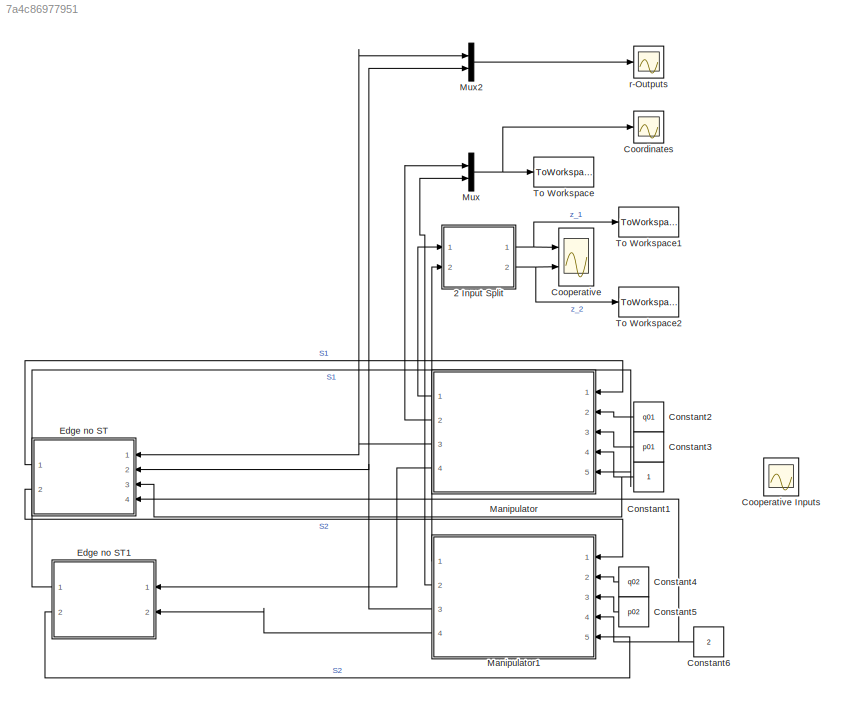
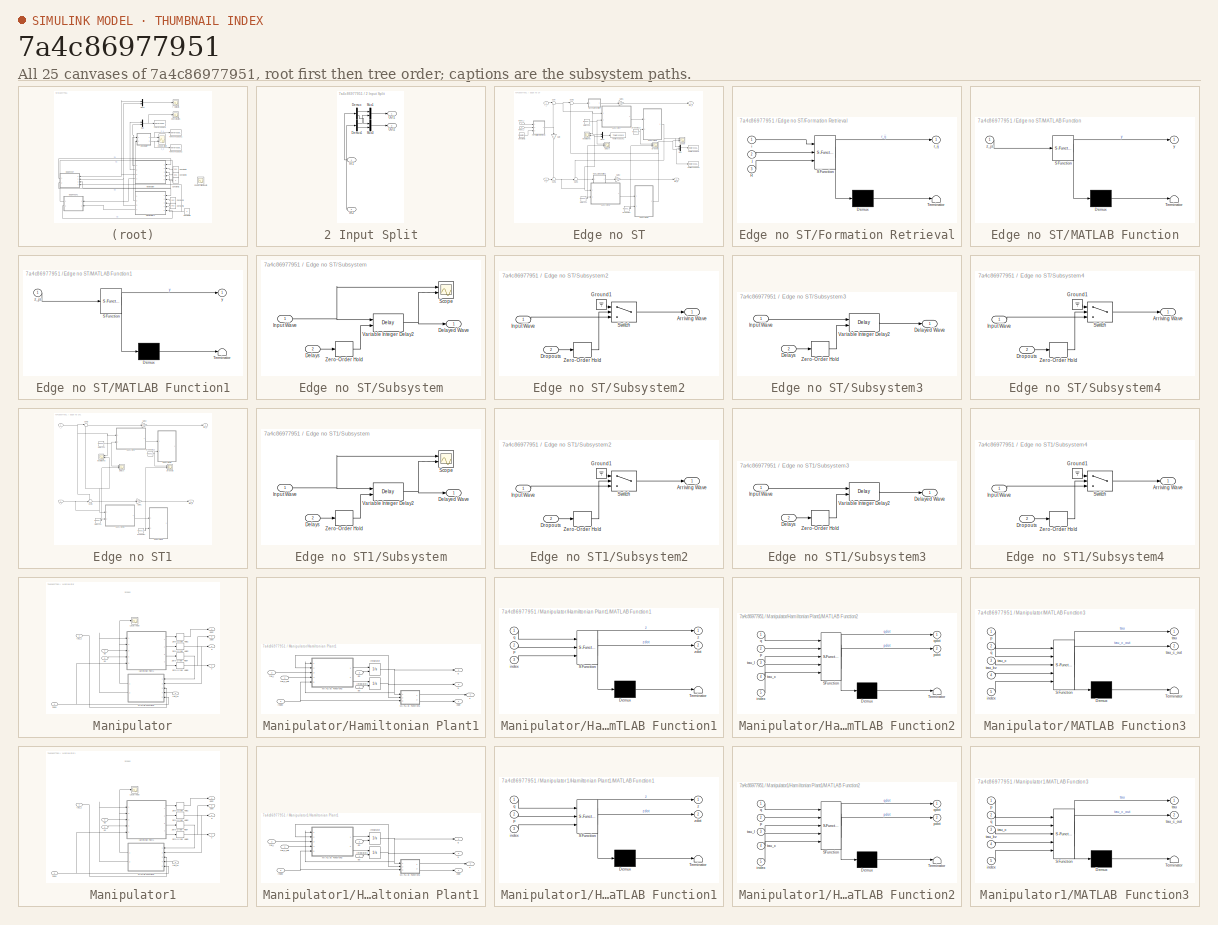
[diagram: thumbnail index - all 25 canvases of the model, root first then tree order]
MODEL slx_7a4c86977951
KIND model
CONFIG AbsTol = auto
CONFIG EnableMultiTasking = off
CONFIG FixedStep = auto
CONFIG MaxStep = auto
CONFIG MinStep = auto
CONFIG RelTol = 1e-5
CONFIG SampleTimeConstraint = Unconstrained
CONFIG Solver = ode23tb
CONFIG SolverName = ode23tb
CONFIG StartTime = 0.0
CONFIG StopTime = 20
BLOCK [SubSystem] 2 Input Split
  Ports = [2, 2]
  RequestExecContextInheritance = off
BLOCK [Demux] 2 Input Split/Demux
  DisplayOption = bar
  Outputs = 2
  Ports = [1, 2]
BLOCK [Demux] 2 Input Split/Demux1
  DisplayOption = bar
  Outputs = 2
  Ports = [1, 2]
BLOCK [Inport] 2 Input Split/In1
  IconDisplay = Port number
BLOCK [Inport] 2 Input Split/In2
  IconDisplay = Port number
  Port = 2
BLOCK [Mux] 2 Input Split/Mux1
  DisplayOption = bar
  Inputs = 2
  Ports = [2, 1]
BLOCK [Mux] 2 Input Split/Mux3
  DisplayOption = bar
  Inputs = 2
  Ports = [2, 1]
BLOCK [Outport] 2 Input Split/Out1
  IconDisplay = Port number
BLOCK [Outport] 2 Input Split/Out2
  IconDisplay = Port number
  Port = 2
BLOCK [Constant] Constant1
BLOCK [Constant] Constant2
  Value = q01
BLOCK [Constant] Constant3
  Value = p01
BLOCK [Constant] Constant4
  Value = q02
BLOCK [Constant] Constant5
  Value = p02
BLOCK [Constant] Constant6
  Value = 2
BLOCK [Scope] Cooperative
  Floating = off
  NumInputPorts = 2
  Ports = [2]
  ScopeSpecificationString = Simulink.scopes.TimeScopeBlockCfg('CurrentConfiguration', extmgr.ConfigurationSet(extmgr.Configuration('Core','General UI',true),extmgr.Configuration('Core','Source UI',true),extmgr.Configuration('Sources','WiredSimulink',true,'DataLoggingVariableName','ScopeData1'),extmgr.Configuration('Visuals','Time Domain',true,'SerializedDisplays',{struct('MinYLimReal','-2.47719','MaxYLimReal','2.49469','YLab...<+2118ch>
BLOCK [Scope] Cooperative Inputs
  Floating = off
  NumInputPorts = 2
  Ports = [2]
  ScopeSpecificationString = Simulink.scopes.TimeScopeBlockCfg('CurrentConfiguration', extmgr.ConfigurationSet(extmgr.Configuration('Core','General UI',true),extmgr.Configuration('Core','Source UI',true),extmgr.Configuration('Sources','WiredSimulink',true,'DataLoggingVariableName','ScopeData2'),extmgr.Configuration('Visuals','Time Domain',true,'SerializedDisplays',{struct('MinYLimReal','-3.51693','MaxYLimReal','1.87737','YLab...<+2090ch>
BLOCK [Scope] Coordinates
  Floating = off
  NumInputPorts = 1
  Ports = [1]
  ScopeSpecificationString = Simulink.scopes.TimeScopeBlockCfg('CurrentConfiguration', extmgr.ConfigurationSet(extmgr.Configuration('Core','General UI',true),extmgr.Configuration('Core','Source UI',true),extmgr.Configuration('Sources','WiredSimulink',true,'DataLoggingVariableName','ScopeData2'),extmgr.Configuration('Visuals','Time Domain',true,'SerializedDisplays',{struct('MinYLimReal','-2.51782','MaxYLimReal','3.95817','YLab...<+2040ch>
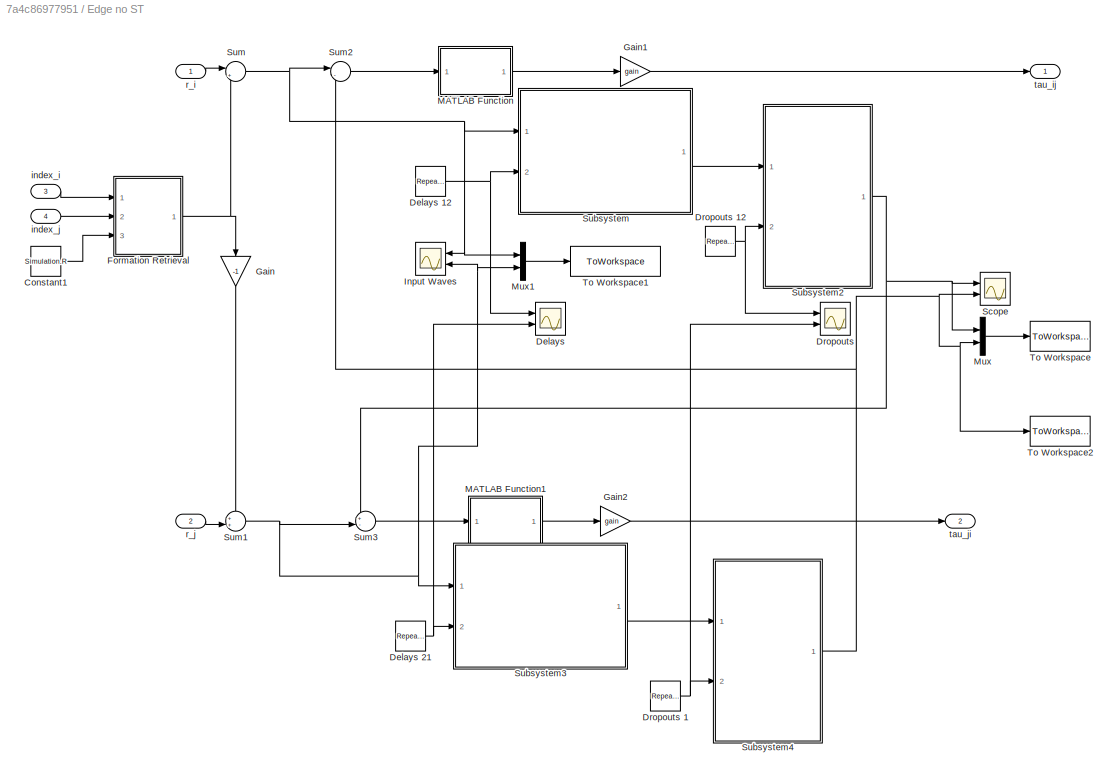
BLOCK [SubSystem] Edge no ST
  Ports = [4, 2]
  RequestExecContextInheritance = off
BLOCK [Constant] Edge no ST/Constant1
  Value = Simulation.R
BLOCK [Scope] Edge no ST/Delays
  Floating = off
  NumInputPorts = 2
  Ports = [2]
  ScopeSpecificationString = Simulink.scopes.TimeScopeBlockCfg('CurrentConfiguration', extmgr.ConfigurationSet(extmgr.Configuration('Core','General UI',true),extmgr.Configuration('Core','Source UI',true),extmgr.Configuration('Sources','WiredSimulink',true,'DataLoggingVariableName','ScopeData1'),extmgr.Configuration('Visuals','Time Domain',true,'SerializedDisplays',{struct('MinYLimReal','-1.00000','MaxYLimReal','1.00000','YLab...<+2087ch>
BLOCK [Reference] Edge no ST/Delays 12  REF=simulink/Sources/Repeating
Sequence
  Ports = [0, 1]
  SourceBlock = simulink/Sources/Repeating\nSequence
  SourceProductBaseCode = SL
  SourceProductName = Simulink
  SourceType = Repeating table
BLOCK [Reference] Edge no ST/Delays 21  REF=simulink/Sources/Repeating
Sequence
  Ports = [0, 1]
  SourceBlock = simulink/Sources/Repeating\nSequence
  SourceProductBaseCode = SL
  SourceProductName = Simulink
  SourceType = Repeating table
BLOCK [Scope] Edge no ST/Dropouts
  Floating = off
  NumInputPorts = 2
  Ports = [2]
  ScopeSpecificationString = Simulink.scopes.TimeScopeBlockCfg('CurrentConfiguration', extmgr.ConfigurationSet(extmgr.Configuration('Core','General UI',true),extmgr.Configuration('Core','Source UI',true),extmgr.Configuration('Sources','WiredSimulink',true,'DataLoggingVariableName','ScopeData3'),extmgr.Configuration('Visuals','Time Domain',true,'SerializedDisplays',{struct('MinYLimReal','-1.00000','MaxYLimReal','1.00000','YLab...<+2090ch>
BLOCK [Reference] Edge no ST/Dropouts 1  REF=simulink/Sources/Repeating
Sequence
  Ports = [0, 1]
  SourceBlock = simulink/Sources/Repeating\nSequence
  SourceProductBaseCode = SL
  SourceProductName = Simulink
  SourceType = Repeating table
BLOCK [Reference] Edge no ST/Dropouts 12  REF=simulink/Sources/Repeating
Sequence
  Ports = [0, 1]
  SourceBlock = simulink/Sources/Repeating\nSequence
  SourceProductBaseCode = SL
  SourceProductName = Simulink
  SourceType = Repeating table
BLOCK [SubSystem] Edge no ST/Formation Retrieval
  ErrorFcn = Stateflow.Translate.translate
  PermitHierarchicalResolution = ExplicitOnly
  Ports = [3, 1]
  RequestExecContextInheritance = off
  SFBlockType = MATLAB Function
  TreatAsAtomicUnit = on
BLOCK [Demux] Edge no ST/Formation Retrieval/ Demux 
  Outputs = 1
  Ports = [1, 1]
BLOCK [S-Function] Edge no ST/Formation Retrieval/ SFunction 
  EnableBusSupport = on
  FunctionName = sf_sfun
  PortCounts = [3 2]
  Ports = [3, 2]
  SFcnIsStateOwnerBlock = off
  SFunctionDeploymentMode = off
  Tag = Stateflow S-Function Model_2Systems_IDA 11
BLOCK [Terminator] Edge no ST/Formation Retrieval/ Terminator 
BLOCK [Inport] Edge no ST/Formation Retrieval/R
  IconDisplay = Port number
  Port = 3
BLOCK [Inport] Edge no ST/Formation Retrieval/i
  IconDisplay = Port number
BLOCK [Inport] Edge no ST/Formation Retrieval/j
  IconDisplay = Port number
  Port = 2
BLOCK [Outport] Edge no ST/Formation Retrieval/r_ij
  IconDisplay = Port number
BLOCK [Gain] Edge no ST/Gain
  Gain = -1
  OutDataTypeStr = Inherit: Inherit via internal rule
  ParamDataTypeStr = Inherit: Inherit via internal rule
  SaturateOnIntegerOverflow = off
BLOCK [Gain] Edge no ST/Gain1
  Gain = gain
  OutDataTypeStr = Inherit: Inherit via internal rule
  ParamDataTypeStr = Inherit: Inherit via internal rule
  SaturateOnIntegerOverflow = off
BLOCK [Gain] Edge no ST/Gain2
  Gain = gain
  OutDataTypeStr = Inherit: Inherit via internal rule
  ParamDataTypeStr = Inherit: Inherit via internal rule
  SaturateOnIntegerOverflow = off
BLOCK [Scope] Edge no ST/Input Waves
  Floating = off
  NumInputPorts = 2
  Ports = [2]
  ScopeSpecificationString = Simulink.scopes.TimeScopeBlockCfg('CurrentConfiguration', extmgr.ConfigurationSet(extmgr.Configuration('Core','General UI',true),extmgr.Configuration('Core','Source UI',true),extmgr.Configuration('Sources','WiredSimulink',true,'DataLoggingVariableName','ScopeData6'),extmgr.Configuration('Visuals','Time Domain',true,'SerializedDisplays',{struct('MinYLimReal','-1.04015','MaxYLimReal','2.33502','YLab...<+2047ch>
BLOCK [SubSystem] Edge no ST/MATLAB Function
  ErrorFcn = Stateflow.Translate.translate
  PermitHierarchicalResolution = ExplicitOnly
  Ports = [1, 1]
  RequestExecContextInheritance = off
  SFBlockType = MATLAB Function
  TreatAsAtomicUnit = on
BLOCK [Demux] Edge no ST/MATLAB Function/ Demux 
  Outputs = 1
  Ports = [1, 1]
BLOCK [S-Function] Edge no ST/MATLAB Function/ SFunction 
  EnableBusSupport = on
  FunctionName = sf_sfun
  PortCounts = [1 2]
  Ports = [1, 2]
  SFcnIsStateOwnerBlock = off
  SFunctionDeploymentMode = off
  Tag = Stateflow S-Function Model_2Systems_IDA 4
BLOCK [Terminator] Edge no ST/MATLAB Function/ Terminator 
BLOCK [Outport] Edge no ST/MATLAB Function/y
  IconDisplay = Port number
BLOCK [Inport] Edge no ST/MATLAB Function/z_js
  IconDisplay = Port number
BLOCK [SubSystem] Edge no ST/MATLAB Function1
  ErrorFcn = Stateflow.Translate.translate
  PermitHierarchicalResolution = ExplicitOnly
  Ports = [1, 1]
  RequestExecContextInheritance = off
  SFBlockType = MATLAB Function
  TreatAsAtomicUnit = on
BLOCK [Demux] Edge no ST/MATLAB Function1/ Demux 
  Outputs = 1
  Ports = [1, 1]
BLOCK [S-Function] Edge no ST/MATLAB Function1/ SFunction 
  EnableBusSupport = on
  FunctionName = sf_sfun
  PortCounts = [1 2]
  Ports = [1, 2]
  SFcnIsStateOwnerBlock = off
  SFunctionDeploymentMode = off
  Tag = Stateflow S-Function Model_2Systems_IDA 5
BLOCK [Terminator] Edge no ST/MATLAB Function1/ Terminator 
BLOCK [Outport] Edge no ST/MATLAB Function1/y
  IconDisplay = Port number
BLOCK [Inport] Edge no ST/MATLAB Function1/z_js
  IconDisplay = Port number
BLOCK [Mux] Edge no ST/Mux
  DisplayOption = bar
  Inputs = 2
  Ports = [2, 1]
BLOCK [Mux] Edge no ST/Mux1
  DisplayOption = bar
  Inputs = 2
  Ports = [2, 1]
BLOCK [Scope] Edge no ST/Scope
  Floating = off
  NumInputPorts = 2
  Ports = [2]
  ScopeSpecificationString = Simulink.scopes.TimeScopeBlockCfg('CurrentConfiguration', extmgr.ConfigurationSet(extmgr.Configuration('Core','General UI',true),extmgr.Configuration('Core','Source UI',true),extmgr.Configuration('Sources','WiredSimulink',true,'DataLoggingVariableName','ScopeData5'),extmgr.Configuration('Visuals','Time Domain',true,'SerializedDisplays',{struct('MinYLimReal','-1.01995','MaxYLimReal','2.33277','YLab...<+2083ch>
BLOCK [SubSystem] Edge no ST/Subsystem
  Ports = [2, 1]
  RequestExecContextInheritance = off
BLOCK [Outport] Edge no ST/Subsystem/Delayed Wave
  IconDisplay = Port number
BLOCK [Inport] Edge no ST/Subsystem/Delays
  IconDisplay = Port number
  Port = 2
BLOCK [Inport] Edge no ST/Subsystem/Input Wave
  IconDisplay = Port number
BLOCK [Scope] Edge no ST/Subsystem/Scope
  Floating = off
  NumInputPorts = 2
  Ports = [2]
  ScopeSpecificationString = Simulink.scopes.TimeScopeBlockCfg('CurrentConfiguration', extmgr.ConfigurationSet(extmgr.Configuration('Core','General UI',true),extmgr.Configuration('Core','Source UI',true),extmgr.Configuration('Sources','WiredSimulink',true,'DataLoggingVariableName','ScopeData1'),extmgr.Configuration('Visuals','Time Domain',true,'SerializedDisplays',{struct('MinYLimReal','1.346207','MaxYLimReal','1.346266','YLa...<+1496ch>
BLOCK [Delay] Edge no ST/Subsystem/Variable Integer Delay2
  DelayLengthSource = Input port
  InputPortMap = u0,p1
  Ports = [2, 1]
  SampleTime = Ts
BLOCK [ZeroOrderHold] Edge no ST/Subsystem/Zero-Order Hold
  SampleTime = Ts
BLOCK [SubSystem] Edge no ST/Subsystem2
  Ports = [2, 1]
  RequestExecContextInheritance = off
BLOCK [Outport] Edge no ST/Subsystem2/Arriving Wave
  IconDisplay = Port number
BLOCK [Inport] Edge no ST/Subsystem2/Dropouts
  IconDisplay = Port number
  Port = 2
BLOCK [Ground] Edge no ST/Subsystem2/Ground1
BLOCK [Inport] Edge no ST/Subsystem2/Input Wave
  IconDisplay = Port number
BLOCK [Switch] Edge no ST/Subsystem2/Switch
  Criteria = u2 > Threshold
  InputSameDT = off
  SaturateOnIntegerOverflow = off
BLOCK [ZeroOrderHold] Edge no ST/Subsystem2/Zero-Order Hold
  SampleTime = Ts
BLOCK [SubSystem] Edge no ST/Subsystem3
  Ports = [2, 1]
  RequestExecContextInheritance = off
BLOCK [Outport] Edge no ST/Subsystem3/Delayed Wave
  IconDisplay = Port number
BLOCK [Inport] Edge no ST/Subsystem3/Delays
  IconDisplay = Port number
  Port = 2
BLOCK [Inport] Edge no ST/Subsystem3/Input Wave
  IconDisplay = Port number
BLOCK [Delay] Edge no ST/Subsystem3/Variable Integer Delay2
  DelayLengthSource = Input port
  InputPortMap = u0,p1
  Ports = [2, 1]
  SampleTime = Ts
BLOCK [ZeroOrderHold] Edge no ST/Subsystem3/Zero-Order Hold
  SampleTime = Ts
BLOCK [SubSystem] Edge no ST/Subsystem4
  Ports = [2, 1]
  RequestExecContextInheritance = off
BLOCK [Outport] Edge no ST/Subsystem4/Arriving Wave
  IconDisplay = Port number
BLOCK [Inport] Edge no ST/Subsystem4/Dropouts
  IconDisplay = Port number
  Port = 2
BLOCK [Ground] Edge no ST/Subsystem4/Ground1
BLOCK [Inport] Edge no ST/Subsystem4/Input Wave
  IconDisplay = Port number
BLOCK [Switch] Edge no ST/Subsystem4/Switch
  Criteria = u2 > Threshold
  InputSameDT = off
  SaturateOnIntegerOverflow = off
BLOCK [ZeroOrderHold] Edge no ST/Subsystem4/Zero-Order Hold
  SampleTime = Ts
BLOCK [Sum] Edge no ST/Sum
  IconShape = round
  InputSameDT = off
  Inputs = |++
  OutDataTypeStr = Inherit: Inherit via internal rule
  Ports = [2, 1]
  SaturateOnIntegerOverflow = off
BLOCK [Sum] Edge no ST/Sum1
  IconShape = round
  InputSameDT = off
  Inputs = ++|
  OutDataTypeStr = Inherit: Inherit via internal rule
  Ports = [2, 1]
  SaturateOnIntegerOverflow = off
BLOCK [Sum] Edge no ST/Sum2
  IconShape = round
  InputSameDT = off
  Inputs = |-+
  OutDataTypeStr = Inherit: Inherit via internal rule
  Ports = [2, 1]
  SaturateOnIntegerOverflow = off
BLOCK [Sum] Edge no ST/Sum3
  IconShape = round
  InputSameDT = off
  Inputs = +-|
  OutDataTypeStr = Inherit: Inherit via internal rule
  Ports = [2, 1]
  SaturateOnIntegerOverflow = off
BLOCK [ToWorkspace] Edge no ST/To Workspace
  FixptAsFi = on
  MaxDataPoints = inf
  Ports = [1]
  SampleTime = Ts
  Save2DSignal = 3-D array (concatenate along third dimension)
  SaveFormat = Timeseries
  VariableName = Output_Waves
BLOCK [ToWorkspace] Edge no ST/To Workspace1
  FixptAsFi = on
  MaxDataPoints = inf
  Ports = [1]
  SampleTime = Ts
  Save2DSignal = 3-D array (concatenate along third dimension)
  SaveFormat = Timeseries
  VariableName = Input_Waves
BLOCK [ToWorkspace] Edge no ST/To Workspace2
  FixptAsFi = on
  MaxDataPoints = inf
  Ports = [1]
  SampleTime = Ts
  Save2DSignal = 3-D array (concatenate along third dimension)
  SaveFormat = Timeseries
  VariableName = S
BLOCK [Inport] Edge no ST/index_i
  IconDisplay = Port number
  Port = 3
BLOCK [Inport] Edge no ST/index_j
  IconDisplay = Port number
  Port = 4
BLOCK [Inport] Edge no ST/r_i
  IconDisplay = Port number
BLOCK [Inport] Edge no ST/r_j
  IconDisplay = Port number
  Port = 2
BLOCK [Outport] Edge no ST/tau_ij
  IconDisplay = Port number
BLOCK [Outport] Edge no ST/tau_ji
  IconDisplay = Port number
  Port = 2
BLOCK [SubSystem] Edge no ST1
  Ports = [2, 2]
  RequestExecContextInheritance = off
BLOCK [Scope] Edge no ST1/Delays
  Floating = off
  NumInputPorts = 2
  Ports = [2]
  ScopeSpecificationString = Simulink.scopes.TimeScopeBlockCfg('CurrentConfiguration', extmgr.ConfigurationSet(extmgr.Configuration('Core','General UI',true),extmgr.Configuration('Core','Source UI',true),extmgr.Configuration('Sources','WiredSimulink',true,'DataLoggingVariableName','ScopeData1'),extmgr.Configuration('Visuals','Time Domain',true,'SerializedDisplays',{struct('MinYLimReal','-1.00000','MaxYLimReal','1.00000','YLab...<+2087ch>
BLOCK [Reference] Edge no ST1/Delays 12  REF=simulink/Sources/Repeating
Sequence
  Ports = [0, 1]
  SourceBlock = simulink/Sources/Repeating\nSequence
  SourceProductBaseCode = SL
  SourceProductName = Simulink
  SourceType = Repeating table
BLOCK [Reference] Edge no ST1/Delays 21  REF=simulink/Sources/Repeating
Sequence
  Ports = [0, 1]
  SourceBlock = simulink/Sources/Repeating\nSequence
  SourceProductBaseCode = SL
  SourceProductName = Simulink
  SourceType = Repeating table
BLOCK [Scope] Edge no ST1/Dropouts
  Floating = off
  NumInputPorts = 2
  Ports = [2]
  ScopeSpecificationString = Simulink.scopes.TimeScopeBlockCfg('CurrentConfiguration', extmgr.ConfigurationSet(extmgr.Configuration('Core','General UI',true),extmgr.Configuration('Core','Source UI',true),extmgr.Configuration('Sources','WiredSimulink',true,'DataLoggingVariableName','ScopeData3'),extmgr.Configuration('Visuals','Time Domain',true,'SerializedDisplays',{struct('MinYLimReal','-1.00000','MaxYLimReal','1.00000','YLab...<+2090ch>
BLOCK [Reference] Edge no ST1/Dropouts 1  REF=simulink/Sources/Repeating
Sequence
  Ports = [0, 1]
  SourceBlock = simulink/Sources/Repeating\nSequence
  SourceProductBaseCode = SL
  SourceProductName = Simulink
  SourceType = Repeating table
BLOCK [Reference] Edge no ST1/Dropouts 12  REF=simulink/Sources/Repeating
Sequence
  Ports = [0, 1]
  SourceBlock = simulink/Sources/Repeating\nSequence
  SourceProductBaseCode = SL
  SourceProductName = Simulink
  SourceType = Repeating table
BLOCK [Gain] Edge no ST1/Gain1
  Gain = gain
  OutDataTypeStr = Inherit: Inherit via internal rule
  ParamDataTypeStr = Inherit: Inherit via internal rule
  SaturateOnIntegerOverflow = off
BLOCK [Gain] Edge no ST1/Gain2
  Gain = gain
  OutDataTypeStr = Inherit: Inherit via internal rule
  ParamDataTypeStr = Inherit: Inherit via internal rule
  SaturateOnIntegerOverflow = off
BLOCK [Scope] Edge no ST1/Input Waves
  Floating = off
  NumInputPorts = 2
  Ports = [2]
  ScopeSpecificationString = Simulink.scopes.TimeScopeBlockCfg('CurrentConfiguration', extmgr.ConfigurationSet(extmgr.Configuration('Core','General UI',true),extmgr.Configuration('Core','Source UI',true),extmgr.Configuration('Sources','WiredSimulink',true,'DataLoggingVariableName','ScopeData6'),extmgr.Configuration('Visuals','Time Domain',true,'SerializedDisplays',{struct('MinYLimReal','-1.04015','MaxYLimReal','2.33502','YLab...<+2047ch>
BLOCK [SubSystem] Edge no ST1/Subsystem
  Ports = [2, 1]
  RequestExecContextInheritance = off
BLOCK [Outport] Edge no ST1/Subsystem/Delayed Wave
  IconDisplay = Port number
BLOCK [Inport] Edge no ST1/Subsystem/Delays
  IconDisplay = Port number
  Port = 2
BLOCK [Inport] Edge no ST1/Subsystem/Input Wave
  IconDisplay = Port number
BLOCK [Scope] Edge no ST1/Subsystem/Scope
  Floating = off
  NumInputPorts = 2
  Ports = [2]
  ScopeSpecificationString = Simulink.scopes.TimeScopeBlockCfg('CurrentConfiguration', extmgr.ConfigurationSet(extmgr.Configuration('Core','General UI',true),extmgr.Configuration('Core','Source UI',true),extmgr.Configuration('Sources','WiredSimulink',true,'DataLoggingVariableName','ScopeData1'),extmgr.Configuration('Visuals','Time Domain',true,'SerializedDisplays',{struct('MinYLimReal','1.346207','MaxYLimReal','1.346266','YLa...<+1496ch>
BLOCK [Delay] Edge no ST1/Subsystem/Variable Integer Delay2
  DelayLengthSource = Input port
  InputPortMap = u0,p1
  Ports = [2, 1]
  SampleTime = Ts
BLOCK [ZeroOrderHold] Edge no ST1/Subsystem/Zero-Order Hold
  SampleTime = Ts
BLOCK [SubSystem] Edge no ST1/Subsystem2
  Ports = [2, 1]
  RequestExecContextInheritance = off
BLOCK [Outport] Edge no ST1/Subsystem2/Arriving Wave
  IconDisplay = Port number
BLOCK [Inport] Edge no ST1/Subsystem2/Dropouts
  IconDisplay = Port number
  Port = 2
BLOCK [Ground] Edge no ST1/Subsystem2/Ground1
BLOCK [Inport] Edge no ST1/Subsystem2/Input Wave
  IconDisplay = Port number
BLOCK [Switch] Edge no ST1/Subsystem2/Switch
  Criteria = u2 > Threshold
  InputSameDT = off
  SaturateOnIntegerOverflow = off
BLOCK [ZeroOrderHold] Edge no ST1/Subsystem2/Zero-Order Hold
  SampleTime = Ts
BLOCK [SubSystem] Edge no ST1/Subsystem3
  Ports = [2, 1]
  RequestExecContextInheritance = off
BLOCK [Outport] Edge no ST1/Subsystem3/Delayed Wave
  IconDisplay = Port number
BLOCK [Inport] Edge no ST1/Subsystem3/Delays
  IconDisplay = Port number
  Port = 2
BLOCK [Inport] Edge no ST1/Subsystem3/Input Wave
  IconDisplay = Port number
BLOCK [Delay] Edge no ST1/Subsystem3/Variable Integer Delay2
  DelayLengthSource = Input port
  InputPortMap = u0,p1
  Ports = [2, 1]
  SampleTime = Ts
BLOCK [ZeroOrderHold] Edge no ST1/Subsystem3/Zero-Order Hold
  SampleTime = Ts
BLOCK [SubSystem] Edge no ST1/Subsystem4
  Ports = [2, 1]
  RequestExecContextInheritance = off
BLOCK [Outport] Edge no ST1/Subsystem4/Arriving Wave
  IconDisplay = Port number
BLOCK [Inport] Edge no ST1/Subsystem4/Dropouts
  IconDisplay = Port number
  Port = 2
BLOCK [Ground] Edge no ST1/Subsystem4/Ground1
BLOCK [Inport] Edge no ST1/Subsystem4/Input Wave
  IconDisplay = Port number
BLOCK [Switch] Edge no ST1/Subsystem4/Switch
  Criteria = u2 > Threshold
  InputSameDT = off
  SaturateOnIntegerOverflow = off
BLOCK [ZeroOrderHold] Edge no ST1/Subsystem4/Zero-Order Hold
  SampleTime = Ts
BLOCK [Sum] Edge no ST1/Sum2
  IconShape = round
  InputSameDT = off
  Inputs = |-+
  OutDataTypeStr = Inherit: Inherit via internal rule
  Ports = [2, 1]
  SaturateOnIntegerOverflow = off
BLOCK [Sum] Edge no ST1/Sum3
  IconShape = round
  InputSameDT = off
  Inputs = +-|
  OutDataTypeStr = Inherit: Inherit via internal rule
  Ports = [2, 1]
  SaturateOnIntegerOverflow = off
BLOCK [Inport] Edge no ST1/r_i
  IconDisplay = Port number
BLOCK [Inport] Edge no ST1/r_j
  IconDisplay = Port number
  Port = 2
BLOCK [Outport] Edge no ST1/tau_ij
  IconDisplay = Port number
BLOCK [Outport] Edge no ST1/tau_ji
  IconDisplay = Port number
  Port = 2
BLOCK [SubSystem] Manipulator
  Ports = [5, 4]
  RequestExecContextInheritance = off
BLOCK [SubSystem] Manipulator/Hamiltonian Plant1
  Ports = [5, 4]
  RequestExecContextInheritance = off
BLOCK [Integrator] Manipulator/Hamiltonian Plant1/Integrator
  InitialCondition = q01
  InitialConditionSource = external
  Ports = [2, 1]
BLOCK [Integrator] Manipulator/Hamiltonian Plant1/Integrator1
  InitialCondition = p02
  InitialConditionSource = external
  Ports = [2, 1]
BLOCK [SubSystem] Manipulator/Hamiltonian Plant1/MATLAB Function1
  ErrorFcn = Stateflow.Translate.translate
  PermitHierarchicalResolution = ExplicitOnly
  Ports = [3, 2]
  RequestExecContextInheritance = off
  SFBlockType = MATLAB Function
  TreatAsAtomicUnit = on
BLOCK [Demux] Manipulator/Hamiltonian Plant1/MATLAB Function1/ Demux 
  Outputs = 1
  Ports = [1, 1]
BLOCK [S-Function] Manipulator/Hamiltonian Plant1/MATLAB Function1/ SFunction 
  EnableBusSupport = on
  FunctionName = sf_sfun
  PortCounts = [3 3]
  Ports = [3, 3]
  SFcnIsStateOwnerBlock = off
  SFunctionDeploymentMode = off
  Tag = Stateflow S-Function Model_2Systems_IDA 22
BLOCK [Terminator] Manipulator/Hamiltonian Plant1/MATLAB Function1/ Terminator 
BLOCK [Inport] Manipulator/Hamiltonian Plant1/MATLAB Function1/index
  IconDisplay = Port number
  Port = 3
BLOCK [Inport] Manipulator/Hamiltonian Plant1/MATLAB Function1/p
  IconDisplay = Port number
  Port = 2
BLOCK [Inport] Manipulator/Hamiltonian Plant1/MATLAB Function1/q
  IconDisplay = Port number
BLOCK [Outport] Manipulator/Hamiltonian Plant1/MATLAB Function1/z
  IconDisplay = Port number
BLOCK [Outport] Manipulator/Hamiltonian Plant1/MATLAB Function1/zdot
  IconDisplay = Port number
  Port = 2
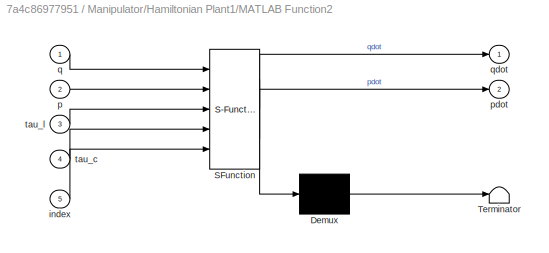
BLOCK [SubSystem] Manipulator/Hamiltonian Plant1/MATLAB Function2
  ErrorFcn = Stateflow.Translate.translate
  PermitHierarchicalResolution = ExplicitOnly
  Ports = [5, 2]
  RequestExecContextInheritance = off
  SFBlockType = MATLAB Function
  TreatAsAtomicUnit = on
BLOCK [Demux] Manipulator/Hamiltonian Plant1/MATLAB Function2/ Demux 
  Outputs = 1
  Ports = [1, 1]
BLOCK [S-Function] Manipulator/Hamiltonian Plant1/MATLAB Function2/ SFunction 
  EnableBusSupport = on
  FunctionName = sf_sfun
  PortCounts = [5 3]
  Ports = [5, 3]
  SFcnIsStateOwnerBlock = off
  SFunctionDeploymentMode = off
  Tag = Stateflow S-Function Model_2Systems_IDA 23
BLOCK [Terminator] Manipulator/Hamiltonian Plant1/MATLAB Function2/ Terminator 
BLOCK [Inport] Manipulator/Hamiltonian Plant1/MATLAB Function2/index
  IconDisplay = Port number
  Port = 5
BLOCK [Inport] Manipulator/Hamiltonian Plant1/MATLAB Function2/p
  IconDisplay = Port number
  Port = 2
BLOCK [Outport] Manipulator/Hamiltonian Plant1/MATLAB Function2/pdot
  IconDisplay = Port number
  Port = 2
BLOCK [Inport] Manipulator/Hamiltonian Plant1/MATLAB Function2/q
  IconDisplay = Port number
BLOCK [Outport] Manipulator/Hamiltonian Plant1/MATLAB Function2/qdot
  IconDisplay = Port number
BLOCK [Inport] Manipulator/Hamiltonian Plant1/MATLAB Function2/tau_c
  IconDisplay = Port number
  Port = 4
BLOCK [Inport] Manipulator/Hamiltonian Plant1/MATLAB Function2/tau_l
  IconDisplay = Port number
  Port = 3
BLOCK [Inport] Manipulator/Hamiltonian Plant1/index
  IconDisplay = Port number
  Port = 5
BLOCK [Outport] Manipulator/Hamiltonian Plant1/p
  IconDisplay = Port number
  Port = 3
BLOCK [Inport] Manipulator/Hamiltonian Plant1/p0
  IconDisplay = Port number
  Port = 4
BLOCK [Outport] Manipulator/Hamiltonian Plant1/q
  IconDisplay = Port number
  Port = 2
BLOCK [Inport] Manipulator/Hamiltonian Plant1/q0
  IconDisplay = Port number
  Port = 3
BLOCK [Inport] Manipulator/Hamiltonian Plant1/tau_c_hat
  IconDisplay = Port number
BLOCK [Inport] Manipulator/Hamiltonian Plant1/tau_l
  IconDisplay = Port number
  Port = 2
BLOCK [Outport] Manipulator/Hamiltonian Plant1/z
  IconDisplay = Port number
  Port = 4
BLOCK [Outport] Manipulator/Hamiltonian Plant1/zdot
  IconDisplay = Port number
BLOCK [Scope] Manipulator/Local Input
  Floating = off
  NumInputPorts = 1
  Ports = [1]
  ScopeSpecificationString = Simulink.scopes.TimeScopeBlockCfg('CurrentConfiguration', extmgr.ConfigurationSet(extmgr.Configuration('Core','General UI',true),extmgr.Configuration('Core','Source UI',true),extmgr.Configuration('Sources','WiredSimulink',true,'DataLoggingVariableName','ScopeData2'),extmgr.Configuration('Visuals','Time Domain',true,'SerializedDisplays',{struct('MinYLimReal','-15.04673','MaxYLimReal','0.06127','YLa...<+1489ch>
BLOCK [SubSystem] Manipulator/MATLAB Function3
  ErrorFcn = Stateflow.Translate.translate
  PermitHierarchicalResolution = ExplicitOnly
  Ports = [5, 2]
  RequestExecContextInheritance = off
  SFBlockType = MATLAB Function
  TreatAsAtomicUnit = on
BLOCK [Demux] Manipulator/MATLAB Function3/ Demux 
  Outputs = 1
  Ports = [1, 1]
BLOCK [S-Function] Manipulator/MATLAB Function3/ SFunction 
  EnableBusSupport = on
  FunctionName = sf_sfun
  Parameters = start_delays
  PortCounts = [5 3]
  Ports = [5, 3]
  SFcnIsStateOwnerBlock = off
  SFunctionDeploymentMode = off
  Tag = Stateflow S-Function Model_2Systems_IDA 26
BLOCK [Terminator] Manipulator/MATLAB Function3/ Terminator 
BLOCK [Inport] Manipulator/MATLAB Function3/index
  IconDisplay = Port number
  Port = 5
BLOCK [Inport] Manipulator/MATLAB Function3/p
  IconDisplay = Port number
BLOCK [Inport] Manipulator/MATLAB Function3/q
  IconDisplay = Port number
  Port = 2
BLOCK [Outport] Manipulator/MATLAB Function3/tau
  IconDisplay = Port number
BLOCK [Inport] Manipulator/MATLAB Function3/tau_c
  IconDisplay = Port number
  Port = 3
BLOCK [Outport] Manipulator/MATLAB Function3/tau_c_out
  IconDisplay = Port number
  Port = 2
BLOCK [Inport] Manipulator/MATLAB Function3/tau_kv
  IconDisplay = Port number
  Port = 4
BLOCK [ZeroOrderHold] Manipulator/Zero-Order Hold1
  SampleTime = Ts
BLOCK [ZeroOrderHold] Manipulator/Zero-Order Hold2
  SampleTime = Ts
BLOCK [ZeroOrderHold] Manipulator/Zero-Order Hold4
  SampleTime = Ts
BLOCK [ZeroOrderHold] Manipulator/Zero-Order Hold5
  SampleTime = Ts
BLOCK [Inport] Manipulator/index
  IconDisplay = Port number
  Port = 4
BLOCK [Inport] Manipulator/p0
  IconDisplay = Port number
  Port = 3
BLOCK [Outport] Manipulator/q
  IconDisplay = Port number
  Port = 2
BLOCK [Inport] Manipulator/q0
  IconDisplay = Port number
  Port = 2
BLOCK [Outport] Manipulator/qdot
  IconDisplay = Port number
  Port = 4
BLOCK [Inport] Manipulator/tau_c
  IconDisplay = Port number
BLOCK [Inport] Manipulator/tau_kv
  IconDisplay = Port number
  Port = 5
BLOCK [Outport] Manipulator/z
  IconDisplay = Port number
BLOCK [Outport] Manipulator/zdot
  IconDisplay = Port number
  Port = 3
BLOCK [SubSystem] Manipulator1
  Ports = [5, 4]
  RequestExecContextInheritance = off
BLOCK [SubSystem] Manipulator1/Hamiltonian Plant1
  Ports = [5, 4]
  RequestExecContextInheritance = off
BLOCK [Integrator] Manipulator1/Hamiltonian Plant1/Integrator
  InitialCondition = q01
  InitialConditionSource = external
  Ports = [2, 1]
BLOCK [Integrator] Manipulator1/Hamiltonian Plant1/Integrator1
  InitialCondition = p02
  InitialConditionSource = external
  Ports = [2, 1]
BLOCK [SubSystem] Manipulator1/Hamiltonian Plant1/MATLAB Function1
  ErrorFcn = Stateflow.Translate.translate
  PermitHierarchicalResolution = ExplicitOnly
  Ports = [3, 2]
  RequestExecContextInheritance = off
  SFBlockType = MATLAB Function
  TreatAsAtomicUnit = on
BLOCK [Demux] Manipulator1/Hamiltonian Plant1/MATLAB Function1/ Demux 
  Outputs = 1
  Ports = [1, 1]
BLOCK [S-Function] Manipulator1/Hamiltonian Plant1/MATLAB Function1/ SFunction 
  EnableBusSupport = on
  FunctionName = sf_sfun
  PortCounts = [3 3]
  Ports = [3, 3]
  SFcnIsStateOwnerBlock = off
  SFunctionDeploymentMode = off
  Tag = Stateflow S-Function Model_2Systems_IDA 1
BLOCK [Terminator] Manipulator1/Hamiltonian Plant1/MATLAB Function1/ Terminator 
BLOCK [Inport] Manipulator1/Hamiltonian Plant1/MATLAB Function1/index
  IconDisplay = Port number
  Port = 3
BLOCK [Inport] Manipulator1/Hamiltonian Plant1/MATLAB Function1/p
  IconDisplay = Port number
  Port = 2
BLOCK [Inport] Manipulator1/Hamiltonian Plant1/MATLAB Function1/q
  IconDisplay = Port number
BLOCK [Outport] Manipulator1/Hamiltonian Plant1/MATLAB Function1/z
  IconDisplay = Port number
BLOCK [Outport] Manipulator1/Hamiltonian Plant1/MATLAB Function1/zdot
  IconDisplay = Port number
  Port = 2
BLOCK [SubSystem] Manipulator1/Hamiltonian Plant1/MATLAB Function2
  ErrorFcn = Stateflow.Translate.translate
  PermitHierarchicalResolution = ExplicitOnly
  Ports = [5, 2]
  RequestExecContextInheritance = off
  SFBlockType = MATLAB Function
  TreatAsAtomicUnit = on
BLOCK [Demux] Manipulator1/Hamiltonian Plant1/MATLAB Function2/ Demux 
  Outputs = 1
  Ports = [1, 1]
BLOCK [S-Function] Manipulator1/Hamiltonian Plant1/MATLAB Function2/ SFunction 
  EnableBusSupport = on
  FunctionName = sf_sfun
  PortCounts = [5 3]
  Ports = [5, 3]
  SFcnIsStateOwnerBlock = off
  SFunctionDeploymentMode = off
  Tag = Stateflow S-Function Model_2Systems_IDA 2
BLOCK [Terminator] Manipulator1/Hamiltonian Plant1/MATLAB Function2/ Terminator 
BLOCK [Inport] Manipulator1/Hamiltonian Plant1/MATLAB Function2/index
  IconDisplay = Port number
  Port = 5
BLOCK [Inport] Manipulator1/Hamiltonian Plant1/MATLAB Function2/p
  IconDisplay = Port number
  Port = 2
BLOCK [Outport] Manipulator1/Hamiltonian Plant1/MATLAB Function2/pdot
  IconDisplay = Port number
  Port = 2
BLOCK [Inport] Manipulator1/Hamiltonian Plant1/MATLAB Function2/q
  IconDisplay = Port number
BLOCK [Outport] Manipulator1/Hamiltonian Plant1/MATLAB Function2/qdot
  IconDisplay = Port number
BLOCK [Inport] Manipulator1/Hamiltonian Plant1/MATLAB Function2/tau_c
  IconDisplay = Port number
  Port = 4
BLOCK [Inport] Manipulator1/Hamiltonian Plant1/MATLAB Function2/tau_l
  IconDisplay = Port number
  Port = 3
BLOCK [Inport] Manipulator1/Hamiltonian Plant1/index
  IconDisplay = Port number
  Port = 5
BLOCK [Outport] Manipulator1/Hamiltonian Plant1/p
  IconDisplay = Port number
  Port = 3
BLOCK [Inport] Manipulator1/Hamiltonian Plant1/p0
  IconDisplay = Port number
  Port = 4
BLOCK [Outport] Manipulator1/Hamiltonian Plant1/q
  IconDisplay = Port number
  Port = 2
BLOCK [Inport] Manipulator1/Hamiltonian Plant1/q0
  IconDisplay = Port number
  Port = 3
BLOCK [Inport] Manipulator1/Hamiltonian Plant1/tau_c_hat
  IconDisplay = Port number
BLOCK [Inport] Manipulator1/Hamiltonian Plant1/tau_l
  IconDisplay = Port number
  Port = 2
BLOCK [Outport] Manipulator1/Hamiltonian Plant1/z
  IconDisplay = Port number
  Port = 4
BLOCK [Outport] Manipulator1/Hamiltonian Plant1/zdot
  IconDisplay = Port number
BLOCK [Scope] Manipulator1/Local Input
  Floating = off
  NumInputPorts = 1
  Ports = [1]
  ScopeSpecificationString = Simulink.scopes.TimeScopeBlockCfg('CurrentConfiguration', extmgr.ConfigurationSet(extmgr.Configuration('Core','General UI',true),extmgr.Configuration('Core','Source UI',true),extmgr.Configuration('Sources','WiredSimulink',true,'DataLoggingVariableName','ScopeData2'),extmgr.Configuration('Visuals','Time Domain',true,'SerializedDisplays',{struct('MinYLimReal','-15.04673','MaxYLimReal','0.06127','YLa...<+1489ch>
BLOCK [SubSystem] Manipulator1/MATLAB Function3
  ErrorFcn = Stateflow.Translate.translate
  PermitHierarchicalResolution = ExplicitOnly
  Ports = [5, 2]
  RequestExecContextInheritance = off
  SFBlockType = MATLAB Function
  TreatAsAtomicUnit = on
BLOCK [Demux] Manipulator1/MATLAB Function3/ Demux 
  Outputs = 1
  Ports = [1, 1]
BLOCK [S-Function] Manipulator1/MATLAB Function3/ SFunction 
  EnableBusSupport = on
  FunctionName = sf_sfun
  Parameters = start_delays
  PortCounts = [5 3]
  Ports = [5, 3]
  SFcnIsStateOwnerBlock = off
  SFunctionDeploymentMode = off
  Tag = Stateflow S-Function Model_2Systems_IDA 3
BLOCK [Terminator] Manipulator1/MATLAB Function3/ Terminator 
BLOCK [Inport] Manipulator1/MATLAB Function3/index
  IconDisplay = Port number
  Port = 5
BLOCK [Inport] Manipulator1/MATLAB Function3/p
  IconDisplay = Port number
BLOCK [Inport] Manipulator1/MATLAB Function3/q
  IconDisplay = Port number
  Port = 2
BLOCK [Outport] Manipulator1/MATLAB Function3/tau
  IconDisplay = Port number
BLOCK [Inport] Manipulator1/MATLAB Function3/tau_c
  IconDisplay = Port number
  Port = 3
BLOCK [Outport] Manipulator1/MATLAB Function3/tau_c_out
  IconDisplay = Port number
  Port = 2
BLOCK [Inport] Manipulator1/MATLAB Function3/tau_kv
  IconDisplay = Port number
  Port = 4
BLOCK [ZeroOrderHold] Manipulator1/Zero-Order Hold1
  SampleTime = Ts
BLOCK [ZeroOrderHold] Manipulator1/Zero-Order Hold2
  SampleTime = Ts
BLOCK [ZeroOrderHold] Manipulator1/Zero-Order Hold4
  SampleTime = Ts
BLOCK [ZeroOrderHold] Manipulator1/Zero-Order Hold5
  SampleTime = Ts
BLOCK [Inport] Manipulator1/index
  IconDisplay = Port number
  Port = 4
BLOCK [Inport] Manipulator1/p0
  IconDisplay = Port number
  Port = 3
BLOCK [Outport] Manipulator1/q
  IconDisplay = Port number
  Port = 2
BLOCK [Inport] Manipulator1/q0
  IconDisplay = Port number
  Port = 2
BLOCK [Outport] Manipulator1/qdot
  IconDisplay = Port number
  Port = 4
BLOCK [Inport] Manipulator1/tau_c
  IconDisplay = Port number
BLOCK [Inport] Manipulator1/tau_kv
  IconDisplay = Port number
  Port = 5
BLOCK [Outport] Manipulator1/z
  IconDisplay = Port number
BLOCK [Outport] Manipulator1/zdot
  IconDisplay = Port number
  Port = 3
BLOCK [Mux] Mux
  DisplayOption = bar
  Inputs = 2
  Ports = [2, 1]
BLOCK [Mux] Mux2
  DisplayOption = bar
  Inputs = 2
  Ports = [2, 1]
BLOCK [ToWorkspace] To Workspace
  FixptAsFi = on
  MaxDataPoints = inf
  Ports = [1]
  SampleTime = -1
  Save2DSignal = 3-D array (concatenate along third dimension)
  SaveFormat = Timeseries
  VariableName = q
BLOCK [ToWorkspace] To Workspace1
  FixptAsFi = on
  MaxDataPoints = inf
  Ports = [1]
  SampleTime = -1
  Save2DSignal = 3-D array (concatenate along third dimension)
  SaveFormat = Timeseries
  VariableName = z1
BLOCK [ToWorkspace] To Workspace2
  FixptAsFi = on
  MaxDataPoints = inf
  Ports = [1]
  SampleTime = -1
  Save2DSignal = 3-D array (concatenate along third dimension)
  SaveFormat = Timeseries
  VariableName = z2
BLOCK [Scope] r-Outputs
  Floating = off
  NumInputPorts = 1
  Ports = [1]
  ScopeSpecificationString = Simulink.scopes.TimeScopeBlockCfg('CurrentConfiguration', extmgr.ConfigurationSet(extmgr.Configuration('Core','General UI',true),extmgr.Configuration('Core','Source UI',true),extmgr.Configuration('Sources','WiredSimulink',true,'DataLoggingVariableName','ScopeData1'),extmgr.Configuration('Visuals','Time Domain',true,'SerializedDisplays',{struct('MinYLimReal','-2.51577','MaxYLimReal','2.49898','YLab...<+1482ch>
ANNOTATION Manipulator: Scopes
ANNOTATION Manipulator1: Scopes
LINE 2 Input Split/Demux1:1 -> 2 Input Split/Mux1:2
LINE 2 Input Split/Demux1:2 -> 2 Input Split/Mux3:2
LINE 2 Input Split/Demux:1 -> 2 Input Split/Mux1:1
LINE 2 Input Split/Demux:2 -> 2 Input Split/Mux3:1
LINE 2 Input Split/In1:1 -> 2 Input Split/Demux:1
LINE 2 Input Split/In2:1 -> 2 Input Split/Demux1:1
LINE 2 Input Split/Mux1:1 -> 2 Input Split/Out1:1
LINE 2 Input Split/Mux3:1 -> 2 Input Split/Out2:1
NET 2 Input Split:1 -> Cooperative:1, To Workspace1:1
NET 2 Input Split:2 -> Cooperative:2, To Workspace2:1
NET Constant1:1 -> Edge no ST:3, Manipulator:4
LINE Constant2:1 -> Manipulator:2
LINE Constant3:1 -> Manipulator:3
LINE Constant4:1 -> Manipulator1:2
LINE Constant5:1 -> Manipulator1:3
NET Constant6:1 -> Edge no ST:4, Manipulator1:4
LINE Edge no ST/Constant1:1 -> Edge no ST/Formation Retrieval:3
NET Edge no ST/Delays 12:1 -> Edge no ST/Delays:1, Edge no ST/Subsystem:2
NET Edge no ST/Delays 21:1 -> Edge no ST/Delays:2, Edge no ST/Subsystem3:2
NET Edge no ST/Dropouts 12:1 -> Edge no ST/Dropouts:1, Edge no ST/Subsystem2:2
NET Edge no ST/Dropouts 1:1 -> Edge no ST/Dropouts:2, Edge no ST/Subsystem4:2
NET Edge no ST/Formation Retrieval:1 -> Edge no ST/Gain:1, Edge no ST/Sum:2
LINE Edge no ST/Gain1:1 -> Edge no ST/tau_ij:1
LINE Edge no ST/Gain2:1 -> Edge no ST/tau_ji:1
LINE Edge no ST/Gain:1 -> Edge no ST/Sum1:1
LINE Edge no ST/MATLAB Function1:1 -> Edge no ST/Gain2:1
LINE Edge no ST/MATLAB Function:1 -> Edge no ST/Gain1:1
LINE Edge no ST/Mux1:1 -> Edge no ST/To Workspace1:1
LINE Edge no ST/Mux:1 -> Edge no ST/To Workspace:1
LINE Edge no ST/Subsystem/Delays:1 -> Edge no ST/Subsystem/Zero-Order Hold:1
NET Edge no ST/Subsystem/Input Wave:1 -> Edge no ST/Subsystem/Scope:1, Edge no ST/Subsystem/Variable Integer Delay2:1
NET Edge no ST/Subsystem/Variable Integer Delay2:1 -> Edge no ST/Subsystem/Delayed Wave:1, Edge no ST/Subsystem/Scope:2
LINE Edge no ST/Subsystem/Zero-Order Hold:1 -> Edge no ST/Subsystem/Variable Integer Delay2:2
LINE Edge no ST/Subsystem2/Dropouts:1 -> Edge no ST/Subsystem2/Zero-Order Hold:1
LINE Edge no ST/Subsystem2/Ground1:1 -> Edge no ST/Subsystem2/Switch:1
LINE Edge no ST/Subsystem2/Input Wave:1 -> Edge no ST/Subsystem2/Switch:3
LINE Edge no ST/Subsystem2/Switch:1 -> Edge no ST/Subsystem2/Arriving Wave:1
LINE Edge no ST/Subsystem2/Zero-Order Hold:1 -> Edge no ST/Subsystem2/Switch:2
NET Edge no ST/Subsystem2:1 -> Edge no ST/Mux:1, Edge no ST/Scope:1, Edge no ST/Sum3:1
LINE Edge no ST/Subsystem3/Delays:1 -> Edge no ST/Subsystem3/Zero-Order Hold:1
LINE Edge no ST/Subsystem3/Input Wave:1 -> Edge no ST/Subsystem3/Variable Integer Delay2:1
LINE Edge no ST/Subsystem3/Variable Integer Delay2:1 -> Edge no ST/Subsystem3/Delayed Wave:1
LINE Edge no ST/Subsystem3/Zero-Order Hold:1 -> Edge no ST/Subsystem3/Variable Integer Delay2:2
LINE Edge no ST/Subsystem3:1 -> Edge no ST/Subsystem4:1
LINE Edge no ST/Subsystem4/Dropouts:1 -> Edge no ST/Subsystem4/Zero-Order Hold:1
LINE Edge no ST/Subsystem4/Ground1:1 -> Edge no ST/Subsystem4/Switch:1
LINE Edge no ST/Subsystem4/Input Wave:1 -> Edge no ST/Subsystem4/Switch:3
LINE Edge no ST/Subsystem4/Switch:1 -> Edge no ST/Subsystem4/Arriving Wave:1
LINE Edge no ST/Subsystem4/Zero-Order Hold:1 -> Edge no ST/Subsystem4/Switch:2
NET Edge no ST/Subsystem4:1 -> Edge no ST/Mux:2, Edge no ST/Scope:2, Edge no ST/Sum2:2, Edge no ST/To Workspace2:1
LINE Edge no ST/Subsystem:1 -> Edge no ST/Subsystem2:1
NET Edge no ST/Sum1:1 -> Edge no ST/Input Waves:2, Edge no ST/Mux1:2, Edge no ST/Subsystem3:1, Edge no ST/Sum3:2
LINE Edge no ST/Sum2:1 -> Edge no ST/MATLAB Function:1
LINE Edge no ST/Sum3:1 -> Edge no ST/MATLAB Function1:1
NET Edge no ST/Sum:1 -> Edge no ST/Input Waves:1, Edge no ST/Mux1:1, Edge no ST/Subsystem:1, Edge no ST/Sum2:1
LINE Edge no ST/index_i:1 -> Edge no ST/Formation Retrieval:1
LINE Edge no ST/index_j:1 -> Edge no ST/Formation Retrieval:2
LINE Edge no ST/r_i:1 -> Edge no ST/Sum:1
LINE Edge no ST/r_j:1 -> Edge no ST/Sum1:2
NET Edge no ST1/Delays 12:1 -> Edge no ST1/Delays:1, Edge no ST1/Subsystem:2
NET Edge no ST1/Delays 21:1 -> Edge no ST1/Delays:2, Edge no ST1/Subsystem3:2
NET Edge no ST1/Dropouts 12:1 -> Edge no ST1/Dropouts:1, Edge no ST1/Subsystem2:2
NET Edge no ST1/Dropouts 1:1 -> Edge no ST1/Dropouts:2, Edge no ST1/Subsystem4:2
LINE Edge no ST1/Gain1:1 -> Edge no ST1/tau_ji:1
LINE Edge no ST1/Gain2:1 -> Edge no ST1/tau_ij:1
LINE Edge no ST1/Subsystem/Delays:1 -> Edge no ST1/Subsystem/Zero-Order Hold:1
NET Edge no ST1/Subsystem/Input Wave:1 -> Edge no ST1/Subsystem/Scope:1, Edge no ST1/Subsystem/Variable Integer Delay2:1
NET Edge no ST1/Subsystem/Variable Integer Delay2:1 -> Edge no ST1/Subsystem/Delayed Wave:1, Edge no ST1/Subsystem/Scope:2
LINE Edge no ST1/Subsystem/Zero-Order Hold:1 -> Edge no ST1/Subsystem/Variable Integer Delay2:2
LINE Edge no ST1/Subsystem2/Dropouts:1 -> Edge no ST1/Subsystem2/Zero-Order Hold:1
LINE Edge no ST1/Subsystem2/Ground1:1 -> Edge no ST1/Subsystem2/Switch:1
LINE Edge no ST1/Subsystem2/Input Wave:1 -> Edge no ST1/Subsystem2/Switch:3
LINE Edge no ST1/Subsystem2/Switch:1 -> Edge no ST1/Subsystem2/Arriving Wave:1
LINE Edge no ST1/Subsystem2/Zero-Order Hold:1 -> Edge no ST1/Subsystem2/Switch:2
LINE Edge no ST1/Subsystem3/Delays:1 -> Edge no ST1/Subsystem3/Zero-Order Hold:1
LINE Edge no ST1/Subsystem3/Input Wave:1 -> Edge no ST1/Subsystem3/Variable Integer Delay2:1
LINE Edge no ST1/Subsystem3/Variable Integer Delay2:1 -> Edge no ST1/Subsystem3/Delayed Wave:1
LINE Edge no ST1/Subsystem3/Zero-Order Hold:1 -> Edge no ST1/Subsystem3/Variable Integer Delay2:2
LINE Edge no ST1/Subsystem3:1 -> Edge no ST1/Subsystem4:1
LINE Edge no ST1/Subsystem4/Dropouts:1 -> Edge no ST1/Subsystem4/Zero-Order Hold:1
LINE Edge no ST1/Subsystem4/Ground1:1 -> Edge no ST1/Subsystem4/Switch:1
LINE Edge no ST1/Subsystem4/Input Wave:1 -> Edge no ST1/Subsystem4/Switch:3
LINE Edge no ST1/Subsystem4/Switch:1 -> Edge no ST1/Subsystem4/Arriving Wave:1
LINE Edge no ST1/Subsystem4/Zero-Order Hold:1 -> Edge no ST1/Subsystem4/Switch:2
LINE Edge no ST1/Subsystem:1 -> Edge no ST1/Subsystem2:1
LINE Edge no ST1/Sum2:1 -> Edge no ST1/Gain2:1
LINE Edge no ST1/Sum3:1 -> Edge no ST1/Gain1:1
NET Edge no ST1/r_i:1 -> Edge no ST1/Input Waves:1, Edge no ST1/Subsystem:1, Edge no ST1/Sum2:1, Edge no ST1/Sum3:1
NET Edge no ST1/r_j:1 -> Edge no ST1/Input Waves:2, Edge no ST1/Subsystem3:1, Edge no ST1/Sum2:2, Edge no ST1/Sum3:2
LINE Edge no ST1:1 -> Manipulator:5
LINE Edge no ST1:2 -> Manipulator1:5
LINE Edge no ST:1 -> Manipulator:1
LINE Edge no ST:2 -> Manipulator1:1
NET Manipulator/Hamiltonian Plant1/Integrator1:1 -> Manipulator/Hamiltonian Plant1/MATLAB Function1:2, Manipulator/Hamiltonian Plant1/MATLAB Function2:2, Manipulator/Hamiltonian Plant1/p:1
NET Manipulator/Hamiltonian Plant1/Integrator:1 -> Manipulator/Hamiltonian Plant1/MATLAB Function1:1, Manipulator/Hamiltonian Plant1/MATLAB Function2:1, Manipulator/Hamiltonian Plant1/q:1
LINE Manipulator/Hamiltonian Plant1/MATLAB Function1:1 -> Manipulator/Hamiltonian Plant1/z:1
LINE Manipulator/Hamiltonian Plant1/MATLAB Function1:2 -> Manipulator/Hamiltonian Plant1/zdot:1
LINE Manipulator/Hamiltonian Plant1/MATLAB Function2:1 -> Manipulator/Hamiltonian Plant1/Integrator:1
LINE Manipulator/Hamiltonian Plant1/MATLAB Function2:2 -> Manipulator/Hamiltonian Plant1/Integrator1:1
NET Manipulator/Hamiltonian Plant1/index:1 -> Manipulator/Hamiltonian Plant1/MATLAB Function1:3, Manipulator/Hamiltonian Plant1/MATLAB Function2:5
LINE Manipulator/Hamiltonian Plant1/p0:1 -> Manipulator/Hamiltonian Plant1/Integrator1:2
LINE Manipulator/Hamiltonian Plant1/q0:1 -> Manipulator/Hamiltonian Plant1/Integrator:2
LINE Manipulator/Hamiltonian Plant1/tau_c_hat:1 -> Manipulator/Hamiltonian Plant1/MATLAB Function2:4
LINE Manipulator/Hamiltonian Plant1/tau_l:1 -> Manipulator/Hamiltonian Plant1/MATLAB Function2:3
LINE Manipulator/Hamiltonian Plant1:1 -> Manipulator/Zero-Order Hold1:1
LINE Manipulator/Hamiltonian Plant1:2 -> Manipulator/Zero-Order Hold2:1
LINE Manipulator/Hamiltonian Plant1:3 -> Manipulator/Zero-Order Hold4:1
LINE Manipulator/Hamiltonian Plant1:4 -> Manipulator/Zero-Order Hold5:1
NET Manipulator/MATLAB Function3:1 -> Manipulator/Hamiltonian Plant1:2, Manipulator/Local Input:1
LINE Manipulator/MATLAB Function3:2 -> Manipulator/Hamiltonian Plant1:1
LINE Manipulator/Zero-Order Hold1:1 -> Manipulator/qdot:1
NET Manipulator/Zero-Order Hold2:1 -> Manipulator/MATLAB Function3:2, Manipulator/q:1
LINE Manipulator/Zero-Order Hold4:1 -> Manipulator/MATLAB Function3:1
NET Manipulator/Zero-Order Hold5:1 -> Manipulator/z:1, Manipulator/zdot:1
NET Manipulator/index:1 -> Manipulator/Hamiltonian Plant1:5, Manipulator/MATLAB Function3:5
LINE Manipulator/p0:1 -> Manipulator/Hamiltonian Plant1:4
LINE Manipulator/q0:1 -> Manipulator/Hamiltonian Plant1:3
LINE Manipulator/tau_c:1 -> Manipulator/MATLAB Function3:3
LINE Manipulator/tau_kv:1 -> Manipulator/MATLAB Function3:4
NET Manipulator1/Hamiltonian Plant1/Integrator1:1 -> Manipulator1/Hamiltonian Plant1/MATLAB Function1:2, Manipulator1/Hamiltonian Plant1/MATLAB Function2:2, Manipulator1/Hamiltonian Plant1/p:1
NET Manipulator1/Hamiltonian Plant1/Integrator:1 -> Manipulator1/Hamiltonian Plant1/MATLAB Function1:1, Manipulator1/Hamiltonian Plant1/MATLAB Function2:1, Manipulator1/Hamiltonian Plant1/q:1
LINE Manipulator1/Hamiltonian Plant1/MATLAB Function1:1 -> Manipulator1/Hamiltonian Plant1/z:1
LINE Manipulator1/Hamiltonian Plant1/MATLAB Function1:2 -> Manipulator1/Hamiltonian Plant1/zdot:1
LINE Manipulator1/Hamiltonian Plant1/MATLAB Function2:1 -> Manipulator1/Hamiltonian Plant1/Integrator:1
LINE Manipulator1/Hamiltonian Plant1/MATLAB Function2:2 -> Manipulator1/Hamiltonian Plant1/Integrator1:1
NET Manipulator1/Hamiltonian Plant1/index:1 -> Manipulator1/Hamiltonian Plant1/MATLAB Function1:3, Manipulator1/Hamiltonian Plant1/MATLAB Function2:5
LINE Manipulator1/Hamiltonian Plant1/p0:1 -> Manipulator1/Hamiltonian Plant1/Integrator1:2
LINE Manipulator1/Hamiltonian Plant1/q0:1 -> Manipulator1/Hamiltonian Plant1/Integrator:2
LINE Manipulator1/Hamiltonian Plant1/tau_c_hat:1 -> Manipulator1/Hamiltonian Plant1/MATLAB Function2:4
LINE Manipulator1/Hamiltonian Plant1/tau_l:1 -> Manipulator1/Hamiltonian Plant1/MATLAB Function2:3
LINE Manipulator1/Hamiltonian Plant1:1 -> Manipulator1/Zero-Order Hold1:1
LINE Manipulator1/Hamiltonian Plant1:2 -> Manipulator1/Zero-Order Hold2:1
LINE Manipulator1/Hamiltonian Plant1:3 -> Manipulator1/Zero-Order Hold4:1
LINE Manipulator1/Hamiltonian Plant1:4 -> Manipulator1/Zero-Order Hold5:1
NET Manipulator1/MATLAB Function3:1 -> Manipulator1/Hamiltonian Plant1:2, Manipulator1/Local Input:1
LINE Manipulator1/MATLAB Function3:2 -> Manipulator1/Hamiltonian Plant1:1
LINE Manipulator1/Zero-Order Hold1:1 -> Manipulator1/qdot:1
NET Manipulator1/Zero-Order Hold2:1 -> Manipulator1/MATLAB Function3:2, Manipulator1/q:1
LINE Manipulator1/Zero-Order Hold4:1 -> Manipulator1/MATLAB Function3:1
NET Manipulator1/Zero-Order Hold5:1 -> Manipulator1/z:1, Manipulator1/zdot:1
NET Manipulator1/index:1 -> Manipulator1/Hamiltonian Plant1:5, Manipulator1/MATLAB Function3:5
LINE Manipulator1/p0:1 -> Manipulator1/Hamiltonian Plant1:4
LINE Manipulator1/q0:1 -> Manipulator1/Hamiltonian Plant1:3
LINE Manipulator1/tau_c:1 -> Manipulator1/MATLAB Function3:3
LINE Manipulator1/tau_kv:1 -> Manipulator1/MATLAB Function3:4
LINE Manipulator1:1 -> 2 Input Split:2
LINE Manipulator1:2 -> Mux:2
NET Manipulator1:3 -> Edge no ST:2, Mux2:2
LINE Manipulator1:4 -> Edge no ST1:2
LINE Manipulator:1 -> 2 Input Split:1
LINE Manipulator:2 -> Mux:1
NET Manipulator:3 -> Edge no ST:1, Mux2:1
LINE Manipulator:4 -> Edge no ST1:1
LINE Mux2:1 -> r-Outputs:1
NET Mux:1 -> Coordinates:1, To Workspace:1
note: NET lines group one-source signal fan-out (src -> all destinations, sorted); 1:1 wires keep LINE
CHART Manipulator1/Hamiltonian Plant1/MATLAB Function1 states=1 transitions=1
  STATE_LABEL 'eML_blk_kernel()'
  STATE_LABEL "SCRIPT:\nfunction [z, zdot] = toz(q, p, index)\n\n    coder.extrinsic('Manipulator_IDAz');\n    z = zeros(2, 1);\n    zdot = zeros(3, 1);\n    [z, zdot] = Manipulator_IDAz(q, p, index);\n"
CHART Manipulator1/Hamiltonian Plant1/MATLAB Function2 states=1 transitions=1
  STATE_LABEL 'eML_blk_kernel()'
  STATE_LABEL "SCRIPT:\nfunction [qdot, pdot] = fcn(q, p, tau_l, tau_c, index)\n\n    coder.extrinsic('Manipulator_IDADynamics');\n    qdot = zeros(3, 1);\n    pdot = zeros(3, 1);\n    [qdot, pdot] = Manipulator_IDADynamics(q, p, tau_l, tau_c, index);\n"
CHART Manipulator1/MATLAB Function3 states=1 transitions=1
  STATE_LABEL 'eML_blk_kernel()'
  STATE_LABEL "SCRIPT:\nfunction [tau, tau_c_out]  = LocalControl(p, q, tau_c, tau_kv, index, start_delays)\n    \n\ncoder.extrinsic('Manipulator_IDAControl');\ntau = zeros(3, 1);\ntau_c_out = zeros(2, 1);\n[tau, tau_c_out] = Manipulator_IDAControl(q, p, tau_c, tau_kv, index, start_delays);\n\n"
CHART Edge no ST/MATLAB Function states=1 transitions=1
  STATE_LABEL 'eML_blk_kernel()'
  STATE_LABEL "SCRIPT:\nfunction y = fcn(z_js)\n\n    % Absolute value to set the distance\n    coder.extrinsic('initWang');\n    \n    y = zeros(2, 1);\n    y = initWang(norm(z_js)) * z_js;\n"
CHART Edge no ST/MATLAB Function1 states=1 transitions=1
  STATE_LABEL 'eML_blk_kernel()'
  STATE_LABEL "SCRIPT:\nfunction y = fcn(z_js)\n\n    % Absolute value to set the distance\n    coder.extrinsic('initWang');\n    \n    y = zeros(2, 1);\n    y = initWang(norm(z_js)) * z_js;\n"
CHART Edge no ST/Formation
Retrieval states=1 transitions=1
  STATE_LABEL 'eML_blk_kernel()'
  STATE_LABEL 'SCRIPT:\nfunction r_ij = get_rij(i, j, R)\n    %r_ij = zeros(2,1);\n    r_ij = [R((i - 1)*2 + 1, j);R(2*i, j)];\nend\n'
CHART Manipulator/Hamiltonian Plant1/MATLAB Function1 states=1 transitions=1
  STATE_LABEL 'eML_blk_kernel()'
  STATE_LABEL "SCRIPT:\nfunction [z, zdot] = toz(q, p, index)\n\n    coder.extrinsic('Manipulator_IDAz');\n    z = zeros(2, 1);\n    zdot = zeros(3, 1);\n    [z, zdot] = Manipulator_IDAz(q, p, index);\n"
CHART Manipulator/Hamiltonian Plant1/MATLAB Function2 states=1 transitions=1
  STATE_LABEL 'eML_blk_kernel()'
  STATE_LABEL "SCRIPT:\nfunction [qdot, pdot] = fcn(q, p, tau_l, tau_c, index)\n\n    coder.extrinsic('Manipulator_IDADynamics');\n    qdot = zeros(3, 1);\n    pdot = zeros(3, 1);\n    [qdot, pdot] = Manipulator_IDADynamics(q, p, tau_l, tau_c, index);\n"
CHART Manipulator/MATLAB Function3 states=1 transitions=1
  STATE_LABEL 'eML_blk_kernel()'
  STATE_LABEL "SCRIPT:\nfunction [tau, tau_c_out]  = LocalControl(p, q, tau_c, tau_kv, index, start_delays)\n    \n\ncoder.extrinsic('Manipulator_IDAControl');\ntau = zeros(3, 1);\ntau_c_out = zeros(2, 1);\n[tau, tau_c_out] = Manipulator_IDAControl(q, p, tau_c, tau_kv, index, start_delays);\n\n"
